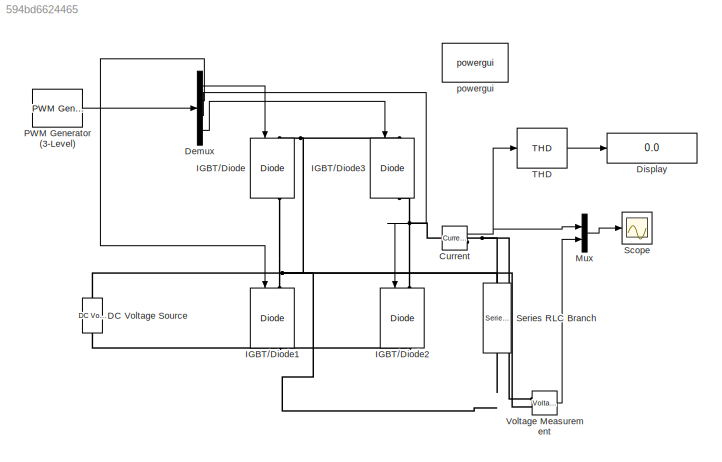
MODEL slx_594bd6624465
KIND model
BLOCK [Reference] Current   REF=powerlib/Measurements/Current Measurement
  OutputType = Complex
  PSBequivalent = 0
  PhasorSimulation = off
  Ports = [0, 1, 0, 0, 0, 1, 1]
  SourceBlock = powerlib/Measurements/Current Measurement
  SourceType = Current Measurement
BLOCK [Reference] DC Voltage Source  REF=powerlib/Electrical
Sources/DC Voltage Source
  Amplitude = 100
  Measurements = None
  Ports = [0, 0, 0, 0, 0, 1, 1]
  SourceBlock = powerlib/Electrical\nSources/DC Voltage Source
  SourceType = DC Voltage Source
BLOCK [Demux] Demux
  DisplayOption = bar
  Ports = [1, 4]
BLOCK [Display] Display
  Decimation = 1
  Lockdown = off
  Ports = [1]
BLOCK [Reference] IGBT//Diode  REF=powerlib/Power
Electronics/IGBT//Diode
  Cs = inf
  Measurements = on
  Ports = [1, 1, 0, 0, 0, 1, 1]
  Ron = 1e-3
  Rs = 1e5
  SourceBlock = powerlib/Power\nElectronics/IGBT//Diode
  SourceType = IGBT/Diode
BLOCK [Reference] IGBT//Diode1  REF=powerlib/Power
Electronics/IGBT//Diode
  Cs = inf
  Measurements = on
  Ports = [1, 1, 0, 0, 0, 1, 1]
  Ron = 1e-3
  Rs = 1e5
  SourceBlock = powerlib/Power\nElectronics/IGBT//Diode
  SourceType = IGBT/Diode
BLOCK [Reference] IGBT//Diode2  REF=powerlib/Power
Electronics/IGBT//Diode
  Cs = inf
  Measurements = on
  Ports = [1, 1, 0, 0, 0, 1, 1]
  Ron = 1e-3
  Rs = 1e5
  SourceBlock = powerlib/Power\nElectronics/IGBT//Diode
  SourceType = IGBT/Diode
BLOCK [Reference] IGBT//Diode3  REF=powerlib/Power
Electronics/IGBT//Diode
  Cs = inf
  Measurements = on
  Ports = [1, 1, 0, 0, 0, 1, 1]
  Ron = 1e-3
  Rs = 1e5
  SourceBlock = powerlib/Power\nElectronics/IGBT//Diode
  SourceType = IGBT/Diode
BLOCK [Mux] Mux
  DisplayOption = bar
  Inputs = 2
  Ports = [2, 1]
BLOCK [Reference] PWM Generator (3-Level)  REF=powerlib_meascontrol/Pulse & Signal
Generators/PWM Generator
(3-Level)
  Fc = 1080
  Freq = 50
  ModulatingSignals = on
  ModulatorMode = Unsynchronized
  ModulatorType = Single-phase half-bridge (4 pulses)
  Phase = 0
  Ports = [0, 1]
  SourceBlock = powerlib_meascontrol/Pulse & Signal\nGenerators/PWM Generator\n(3-Level)
  SourceType = PWM Generator (3-Level)
  Ts = 0
  m = 0.8
  nF = 27
BLOCK [Scope] Scope
  DataFormat = StructureWithTime
  Floating = off
  NumInputPorts = 1
  Ports = [1]
  SampleTime = 0
  ShowLegends = off
  YMax = 4e-07
  YMin = -4e-07
  ZoomMode = xonly
BLOCK [Reference] Series RLC Branch  REF=powerlib/Elements/Series RLC Branch
  BranchType = RL
  Capacitance = 0
  Inductance = 1e-3
  InitialCurrent = 0
  InitialVoltage = 0
  LConnTagsString = __new0
  Measurements = Branch voltage
  Ports = [0, 0, 0, 0, 0, 1, 1]
  RConnTagsString = __new0
  Resistance = 1
  SetiL0 = off
  Setx0 = off
  SourceBlock = powerlib/Elements/Series RLC Branch
  SourceType = Series RLC Branch
BLOCK [Reference] THD  REF=powerlib_meascontrol/Measurements/THD
  Freq = 60
  Ports = [1, 1]
  SourceBlock = powerlib_meascontrol/Measurements/THD
  SourceType = THD
  Ts = 0
BLOCK [Reference] Voltage Measurement  REF=powerlib/Measurements/Voltage Measurement
  OutputType = Complex
  PSBequivalent = 0
  PhasorSimulation = off
  Ports = [0, 1, 0, 0, 0, 2]
  SourceBlock = powerlib/Measurements/Voltage Measurement
  SourceType = Voltage Measurement
BLOCK [Reference] powergui  REF=powerlib/powergui
  DisableRonSwitches = off
  DisableSnubberDevices = off
  DisableVfSwitches = off
  DisplayEquations = off
  DisplayStyle = 1
  EnableUseOfTLC = off
  ErrMax = 1e-4
  Frange = [0:2:500]
  FreqAxis = off
  FunctionMessages = off
  HookPort = off
  Interpol = off
  Iterations = 50
  MaxFrequency = 1000
  Pbase = 100e6
  Ports = []
  Priority = 1
  ResistiveCurrentMeasurement = off
  RestoreLinks = warning
  RmsSteady = 1
  SPID = off
  SampleTime = 50e-6
  ShowGrid = off
  SolverType = Tustin
  SourceBlock = powerlib/powergui
  SourceType = PSB option menu block
  StartTime = 0.0
  SwTol = 0
  Ts = 0
  UnitsV = kV
  UnitsW = MW
  UserDataPersistent = on
  Xlog = on
  Ylog = off
  ZoomFFT = off
  cycles = 1
  display = off
  echomessages = off
  frequency = 60
  frequencyindice = 0
  frequencyindicesteady = 1
  fundamental = 60
  methode = off
  save = off
  variable = ZData
  x0status = blocks
NET Current :1 -> Mux:1, THD:1
LINE Demux:1 -> IGBT//Diode:1
LINE Demux:2 -> IGBT//Diode1:1
LINE Demux:3 -> IGBT//Diode2:1
LINE Demux:4 -> IGBT//Diode3:1
LINE Mux:1 -> Scope:1
LINE PWM Generator (3-Level):1 -> Demux:1
LINE THD:1 -> Display:1
LINE Voltage Measurement:1 -> Mux:2
PNET net1: Current :LConn1 -- IGBT//Diode2:LConn1 -- IGBT//Diode3:RConn1
PNET net2: Current :RConn1 -- Series RLC Branch:LConn1 -- Voltage Measurement:LConn1
PNET net3: DC Voltage Source:LConn1 -- IGBT//Diode1:RConn1 -- IGBT//Diode2:RConn1
PNET net4: DC Voltage Source:RConn1 -- IGBT//Diode3:LConn1 -- IGBT//Diode:LConn1
PNET net5: IGBT//Diode1:LConn1 -- IGBT//Diode:RConn1 -- Series RLC Branch:RConn1 -- Voltage Measurement:LConn2
note: NET lines group one-source signal fan-out (src -> all destinations, sorted); 1:1 wires keep LINE; PNET lines group multi-terminal physical nets as a canonical sorted terminal list (undirected conserving connections); 2-terminal nets keep the pairwise PLINE form
